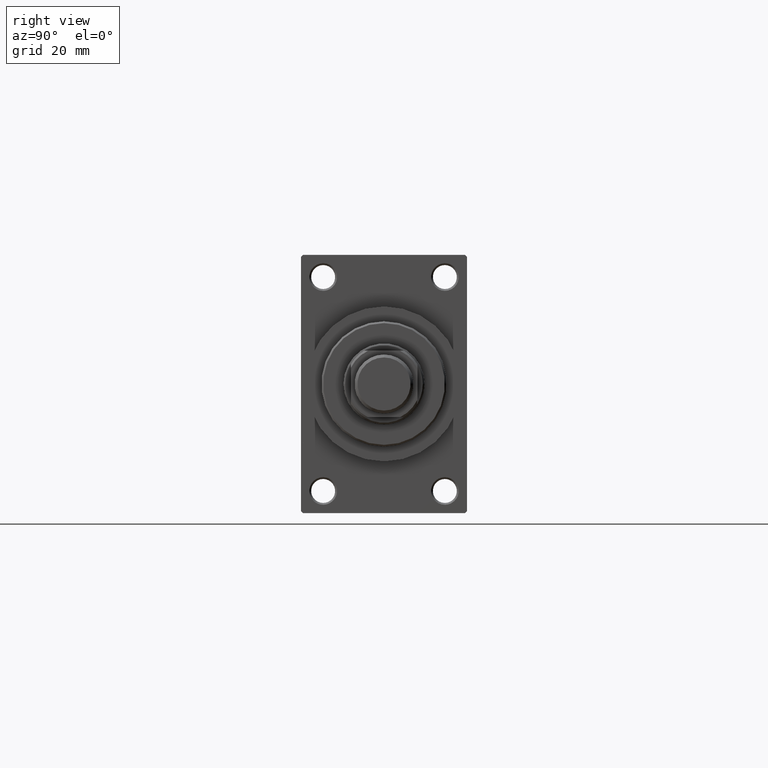
[diagram: clean part render]
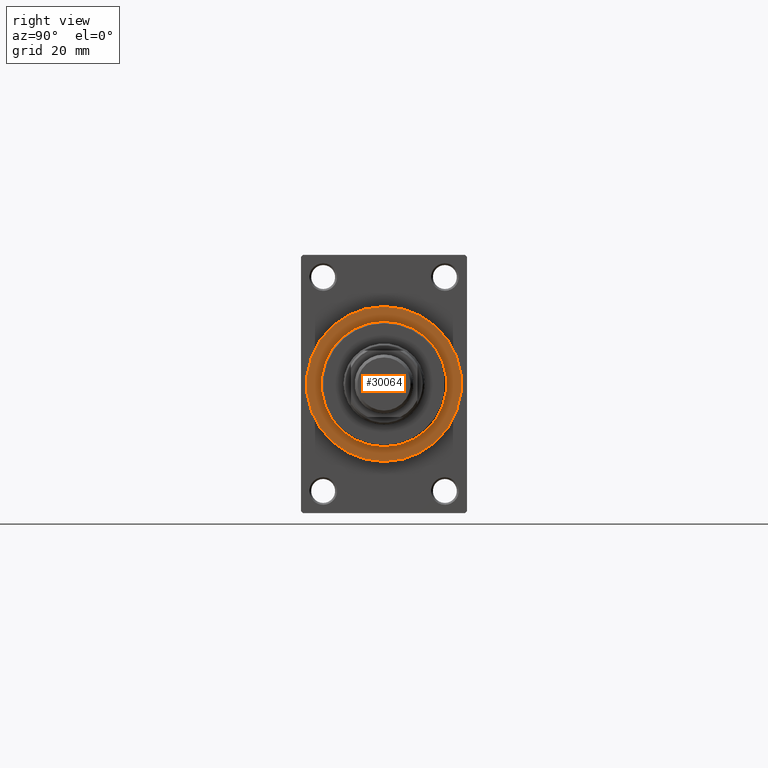
[diagram: same view with one face highlighted and labeled with its STEP entity id]
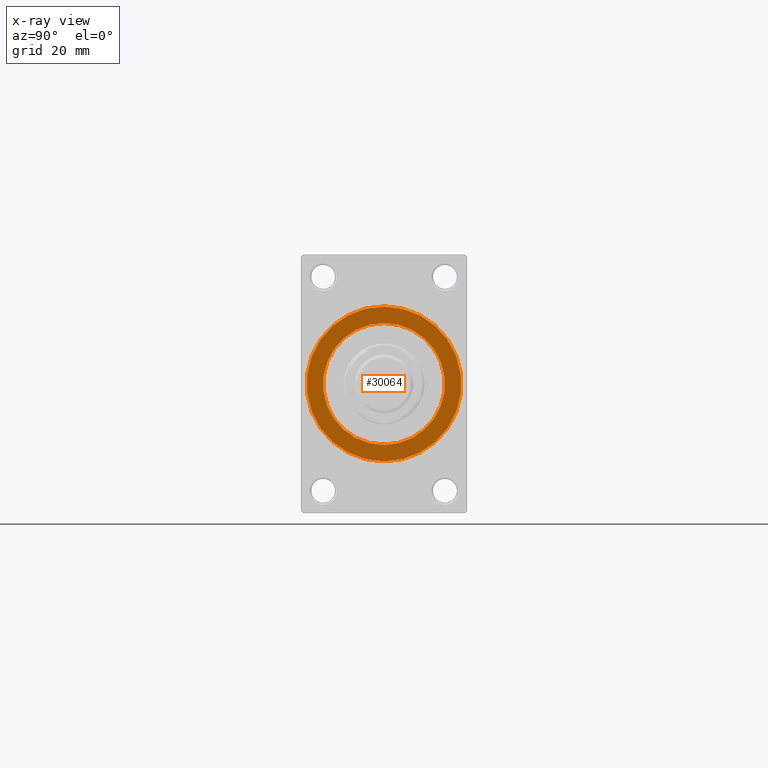
[diagram: x-ray of the same camera — body ghosted, the highlighted face saturated]
A machine part, right view. The second image highlights one B-rep face of the part: STEP entity #30064.
The next image is the same camera in x-ray: the body ghosted, the highlighted face saturated — about 0% of this face is hidden behind the body in this view.
In plain terms, the highlighted planar face has unit normal (1, 0, 0).
Its self-contained STEP definition (entity closure, byte-faithful):
#874 = CARTESIAN_POINT ( 'NONE',  ( 123.0000000000000142, 0.000000000000000000, 0.000000000000000000 ) ) ;
#1790 = CARTESIAN_POINT ( 'NONE',  ( 123.0000000000000142, 0.000000000000000000, 0.000000000000000000 ) ) ;
#4030 = CARTESIAN_POINT ( 'NONE',  ( 123.0000000000000142, 2.020667218593133100E-15, 16.50000000000000000 ) ) ;
#4873 = EDGE_LOOP ( 'NONE', ( #31803, #44402 ) ) ;
#5151 = ORIENTED_EDGE ( 'NONE', *, *, #30676, .T. ) ;
#5425 = AXIS2_PLACEMENT_3D ( 'NONE', #35876, #28662, #6762 ) ;
#6762 = DIRECTION ( 'NONE',  ( 0.000000000000000000, 0.000000000000000000, -1.000000000000000000 ) ) ;
#9355 = ORIENTED_EDGE ( 'NONE', *, *, #47118, .T. ) ;
#10490 = EDGE_LOOP ( 'NONE', ( #9355, #5151 ) ) ;
#12259 = CIRCLE ( 'NONE', #19924, 21.00000000000000000 ) ;
#12327 = EDGE_CURVE ( 'NONE', #20054, #15824, #35732, .T. ) ;
#13112 = DIRECTION ( 'NONE',  ( 0.000000000000000000, 0.000000000000000000, -1.000000000000000000 ) ) ;
#13165 = CARTESIAN_POINT ( 'NONE',  ( 123.0000000000000142, 0.000000000000000000, 21.00000000000000000 ) ) ;
#15824 = VERTEX_POINT ( 'NONE', #4030 ) ;
#16146 = DIRECTION ( 'NONE',  ( 0.000000000000000000, 0.000000000000000000, -1.000000000000000000 ) ) ;
#16383 = DIRECTION ( 'NONE',  ( 1.000000000000000000, 0.000000000000000000, 0.000000000000000000 ) ) ;
#16718 = FACE_OUTER_BOUND ( 'NONE', #10490, .T. ) ;
#19924 = AXIS2_PLACEMENT_3D ( 'NONE', #874, #37660, #34302 ) ;
#20054 = VERTEX_POINT ( 'NONE', #27339 ) ;
#22387 = CIRCLE ( 'NONE', #42338, 21.00000000000000000 ) ;
#24403 = CARTESIAN_POINT ( 'NONE',  ( 123.0000000000000142, 0.000000000000000000, 0.000000000000000000 ) ) ;
#27339 = CARTESIAN_POINT ( 'NONE',  ( 123.0000000000000142, 0.000000000000000000, -16.50000000000000000 ) ) ;
#28662 = DIRECTION ( 'NONE',  ( 1.000000000000000000, 0.000000000000000000, 0.000000000000000000 ) ) ;
#29722 = VERTEX_POINT ( 'NONE', #13165 ) ;
#30064 = ADVANCED_FACE ( 'NONE', ( #31622, #16718 ), #46326, .T. ) ;
#30676 = EDGE_CURVE ( 'NONE', #36155, #29722, #12259, .T. ) ;
#31120 = DIRECTION ( 'NONE',  ( 1.000000000000000000, 0.000000000000000000, 0.000000000000000000 ) ) ;
#31375 = DIRECTION ( 'NONE',  ( 1.000000000000000000, 0.000000000000000000, 0.000000000000000000 ) ) ;
#31622 = FACE_BOUND ( 'NONE', #4873, .T. ) ;
#31803 = ORIENTED_EDGE ( 'NONE', *, *, #12327, .F. ) ;
#33842 = EDGE_CURVE ( 'NONE', #15824, #20054, #43115, .T. ) ;
#34302 = DIRECTION ( 'NONE',  ( 0.000000000000000000, 0.000000000000000000, -1.000000000000000000 ) ) ;
#35732 = CIRCLE ( 'NONE', #38808, 16.50000000000000000 ) ;
#35876 = CARTESIAN_POINT ( 'NONE',  ( 123.0000000000000142, 0.000000000000000000, 0.000000000000000000 ) ) ;
#36155 = VERTEX_POINT ( 'NONE', #37121 ) ;
#37121 = CARTESIAN_POINT ( 'NONE',  ( 123.0000000000000142, 2.571758278209441661E-15, -21.00000000000000000 ) ) ;
#37660 = DIRECTION ( 'NONE',  ( 1.000000000000000000, 0.000000000000000000, 0.000000000000000000 ) ) ;
#38808 = AXIS2_PLACEMENT_3D ( 'NONE', #41898, #16383, #16146 ) ;
#38816 = DIRECTION ( 'NONE',  ( 0.000000000000000000, 0.000000000000000000, -1.000000000000000000 ) ) ;
#41898 = CARTESIAN_POINT ( 'NONE',  ( 123.0000000000000142, 0.000000000000000000, 0.000000000000000000 ) ) ;
#42213 = AXIS2_PLACEMENT_3D ( 'NONE', #24403, #31375, #13112 ) ;
#42338 = AXIS2_PLACEMENT_3D ( 'NONE', #1790, #31120, #38816 ) ;
#43115 = CIRCLE ( 'NONE', #5425, 16.50000000000000000 ) ;
#44402 = ORIENTED_EDGE ( 'NONE', *, *, #33842, .F. ) ;
#46326 = PLANE ( 'NONE',  #42213 ) ;
#47118 = EDGE_CURVE ( 'NONE', #29722, #36155, #22387, .T. ) ;